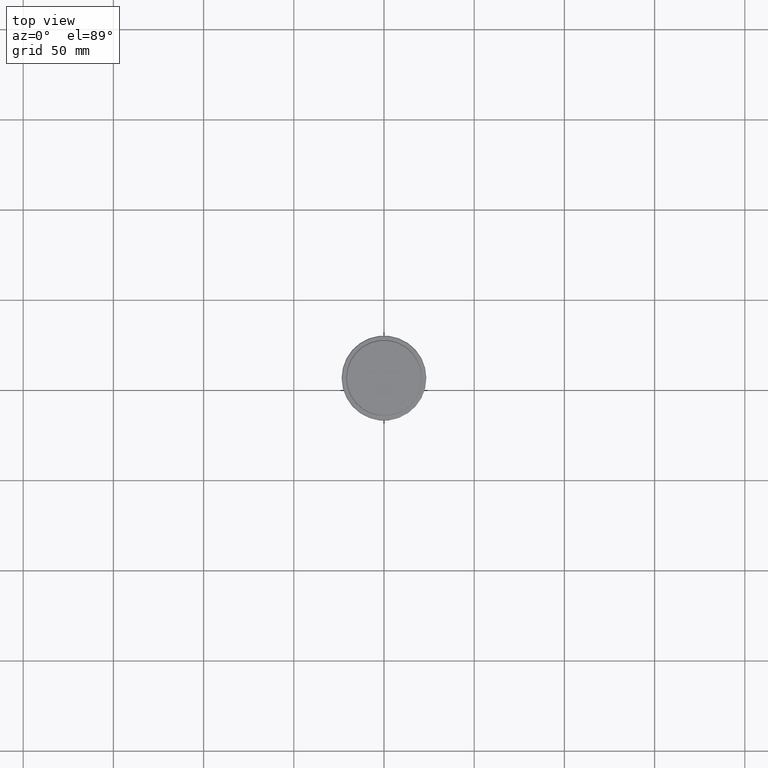
[diagram: clean part render]
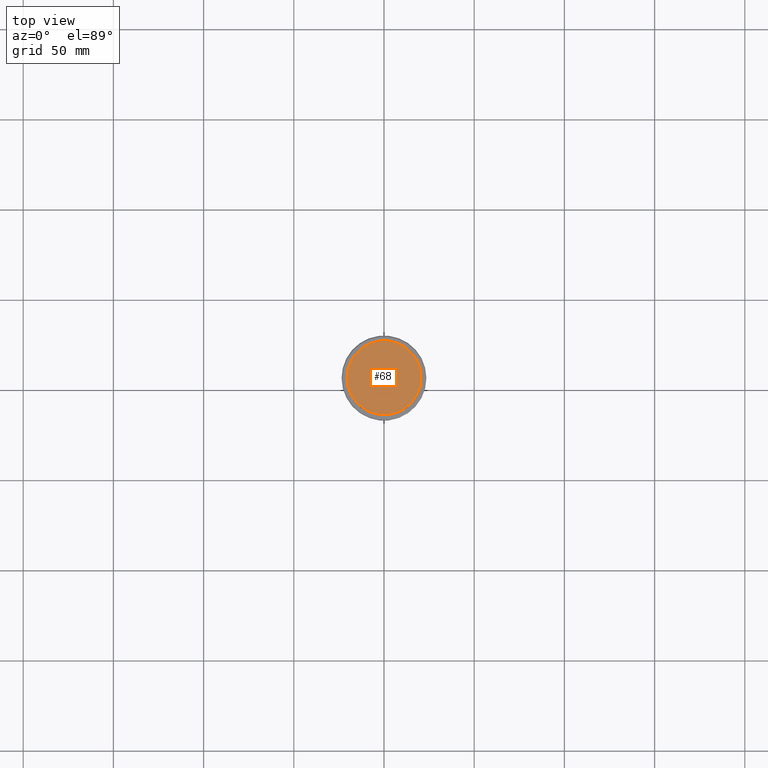
[diagram: same view with one face highlighted and labeled with its STEP entity id]
A machine part, top view. The second image highlights one B-rep face of the part: STEP entity #68.
In plain terms, the highlighted planar face has unit normal (0, -0, 1).
Its self-contained STEP definition (entity closure, byte-faithful):
#21 = CARTESIAN_POINT ( 'NONE',  ( 0.000000000000000000, 0.000000000000000000, 0.000000000000000000 ) ) ;
#62 = CARTESIAN_POINT ( 'NONE',  ( 20.50000000000001776, 2.541142108230758663E-15, 0.000000000000000000 ) ) ;
#68 = ADVANCED_FACE ( 'NONE', ( #438 ), #559, .T. ) ;
#137 = ORIENTED_EDGE ( 'NONE', *, *, #1082, .T. ) ;
#154 = AXIS2_PLACEMENT_3D ( 'NONE', #1104, #1298, #1416 ) ;
#159 = DIRECTION ( 'NONE',  ( 1.000000000000000000, 0.000000000000000000, 0.000000000000000000 ) ) ;
#298 = VERTEX_POINT ( 'NONE', #62 ) ;
#311 = VERTEX_POINT ( 'NONE', #530 ) ;
#378 = CIRCLE ( 'NONE', #154, 20.50000000000001776 ) ;
#432 = ORIENTED_EDGE ( 'NONE', *, *, #1352, .T. ) ;
#438 = FACE_OUTER_BOUND ( 'NONE', #798, .T. ) ;
#459 = DIRECTION ( 'NONE',  ( 0.000000000000000000, -0.000000000000000000, 1.000000000000000000 ) ) ;
#530 = CARTESIAN_POINT ( 'NONE',  ( -20.50000000000001776, 0.000000000000000000, 0.000000000000000000 ) ) ;
#559 = PLANE ( 'NONE',  #972 ) ;
#692 = DIRECTION ( 'NONE',  ( -0.000000000000000000, -0.000000000000000000, 1.000000000000000000 ) ) ;
#712 = CARTESIAN_POINT ( 'NONE',  ( 0.000000000000000000, 0.000000000000000000, 0.000000000000000000 ) ) ;
#798 = EDGE_LOOP ( 'NONE', ( #137, #432 ) ) ;
#873 = DIRECTION ( 'NONE',  ( 1.000000000000000000, 0.000000000000000000, 0.000000000000000000 ) ) ;
#882 = AXIS2_PLACEMENT_3D ( 'NONE', #712, #692, #159 ) ;
#904 = CIRCLE ( 'NONE', #882, 20.50000000000001776 ) ;
#972 = AXIS2_PLACEMENT_3D ( 'NONE', #21, #459, #873 ) ;
#1082 = EDGE_CURVE ( 'NONE', #311, #298, #904, .T. ) ;
#1104 = CARTESIAN_POINT ( 'NONE',  ( 0.000000000000000000, 0.000000000000000000, 0.000000000000000000 ) ) ;
#1298 = DIRECTION ( 'NONE',  ( -0.000000000000000000, -0.000000000000000000, 1.000000000000000000 ) ) ;
#1352 = EDGE_CURVE ( 'NONE', #298, #311, #378, .T. ) ;
#1416 = DIRECTION ( 'NONE',  ( 1.000000000000000000, 0.000000000000000000, 0.000000000000000000 ) ) ;